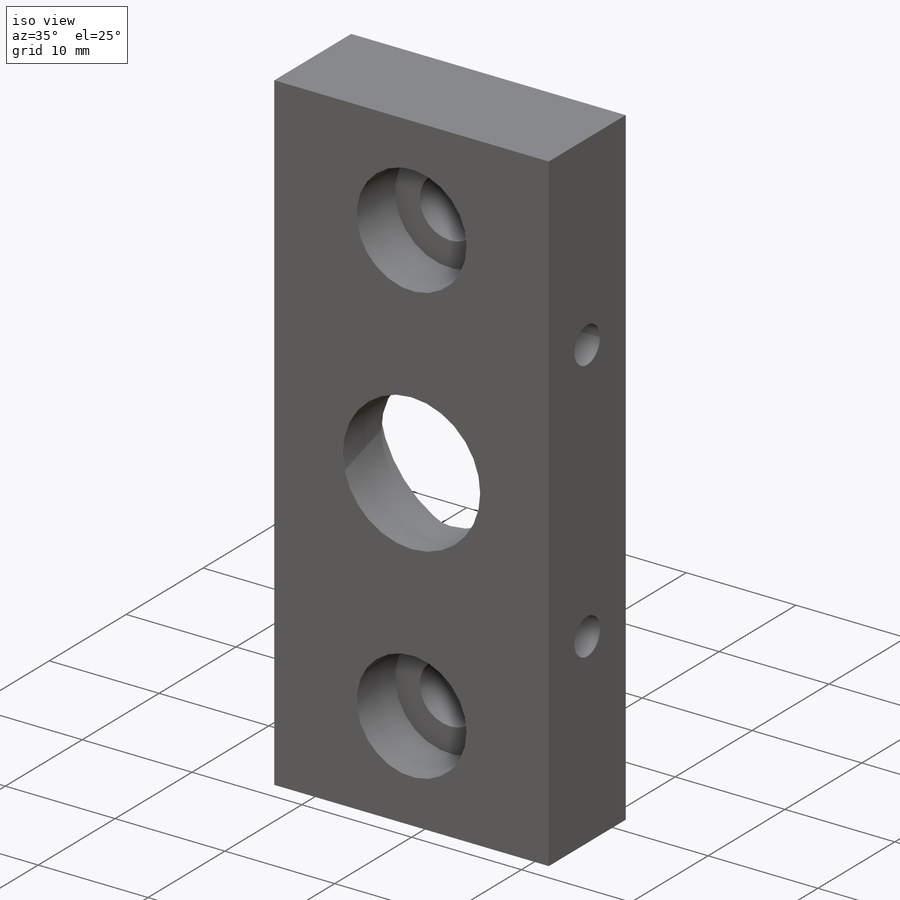
[diagram: iso view]
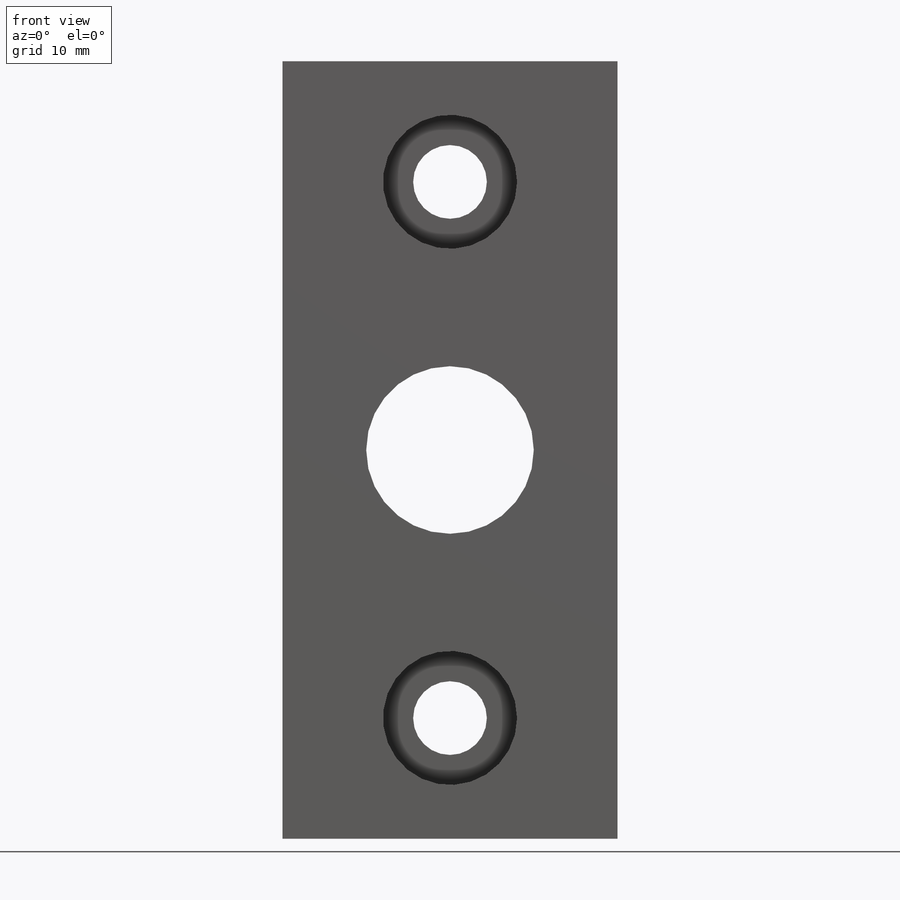
[diagram: front view]
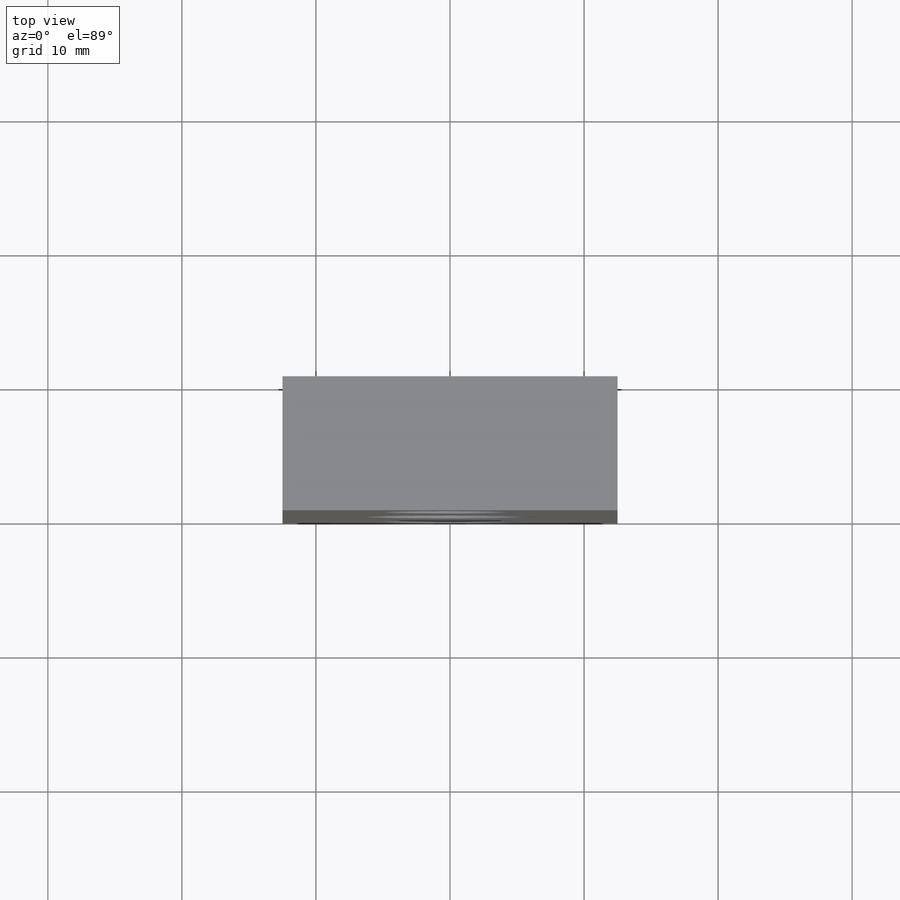
[diagram: top view]
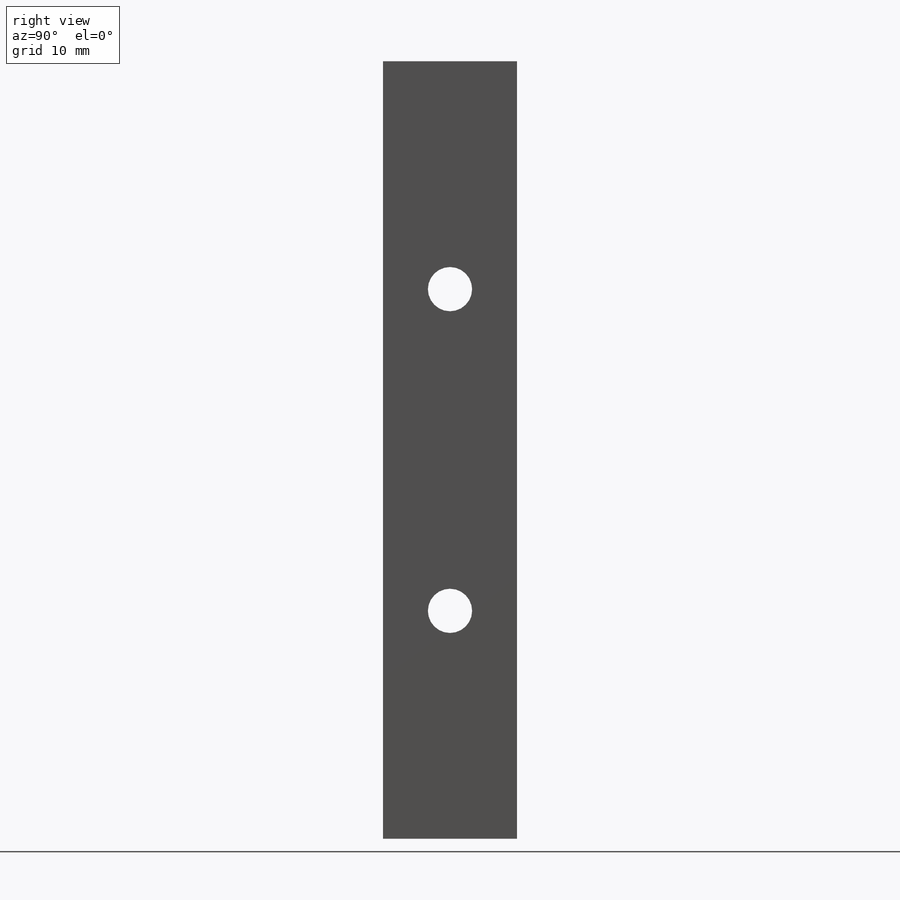
[diagram: right view]
SOLIDWORKS PART (.sldprt)
format: sldprt  version: not decoded by parser v0  size: 296,448 bytes
history: native  units: mm
features: sketch x11, hole x4, plane x3, cut_extrude x2, thread x2, material x1, extrude x1 (+13 scaffold rows collapsed)
feature tree (37):
  scaffold x13  (default folders/planes/origin — collapsed)
  material  "3.1325 (EN-AW 2017A)"
  plane  "Plan de face"
  plane  "Plan de dessus"
  plane  "Plan de droite"
  sketch  "Esquisse1"  dims[D1=25.0mm D2=58.0mm]
  extrude  "Boss.-Extru.1"  Depth=10mm
  sketch  "Esquisse3"  dims[D1=~7.931411mm]
  cut_extrude  "Enlèv. mat.-Extru.2"  Depth=5mm
  sketch  "Esquisse4"  dims[D1=~4.543459mm]
  cut_extrude  "Enlèv. mat.-Extru.3"  [1 undecoded]
  hole  "Chambrage pour vis à tête hexagonale M51"  Diameter=5.5mm Depth=10mm
  sketch  "Esquisse6"  dims[D1=12.5mm D2=20.0mm]
  sketch  "Esquisse5"  dims[hole-wizard template sketch: 42 standard entries collapsed; hole parameters kept: c12.Profondeur du perçage jusqu'au prochain=10.0mm c12.Diamètre du chambrage=10.0mm c12.Profondeur du chambrage=5.0mm]
  hole  "Chambrage pour vis à tête hexagonale M53"  Diameter=5.5mm Depth=10mm
  sketch  "Esquisse10"  dims[D1=12.5mm D2=20.0mm]
  sketch  "Esquisse9"  dims[hole-wizard template sketch: 42 standard entries collapsed; hole parameters kept: c12.Profondeur du perçage jusqu'au prochain=10.0mm c12.Diamètre du chambrage=10.0mm c12.Profondeur du chambrage=5.0mm]
  hole  "Trou taraudé M43"  [1 undecoded]
  sketch  "Esquisse12"  dims[c1.D1=5.0mm c1.D2=~5.293777mm c2.D1=12.0mm]
  thread  "Filetage de perçage2"  Diameter=4mm  [1 undecoded]
  sketch  "Esquisse11"  dims[hole-wizard template sketch: 59 standard entries collapsed; hole parameters kept: c18.Diamètre du trou pour taraudage jusqu'au prochain=3.3mm c18.Profondeur du trou pour taraudage jusqu'au prochain=25.0mm]
  hole  "Trou taraudé M42"  Diameter=3.3mm Depth=25mm
  sketch  "Esquisse14"  dims[c1.D1=5.0mm c1.D2=~7.994114mm c2.D1=12.0mm]
  sketch  "Esquisse13"  dims[hole-wizard template sketch: 59 standard entries collapsed; hole parameters kept: c18.Diamètre du trou pour taraudage jusqu'au prochain=3.3mm c18.Profondeur du trou pour taraudage jusqu'au prochain=25.0mm]
  thread  "Filetage de perçage1"  Diameter=4mm  [1 undecoded]
decode coverage: 18 of 20 modeling features carry decoded parameters
note: ~ marks probable driven/reference dimensions
note: 4 parameter values undecoded
note: suppression state not decoded; provenance and decode notes live in map.json
